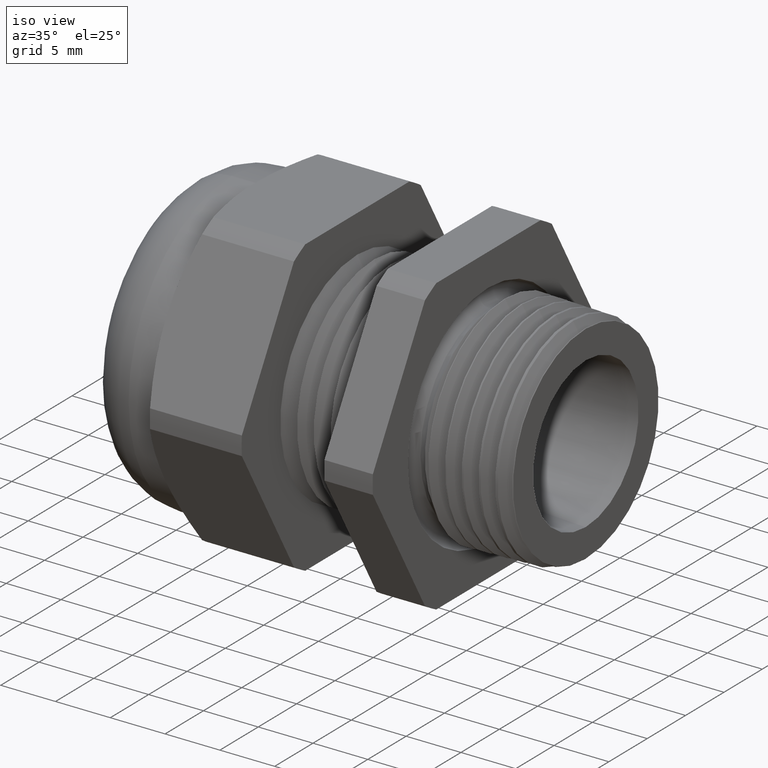
[diagram: clean part render]
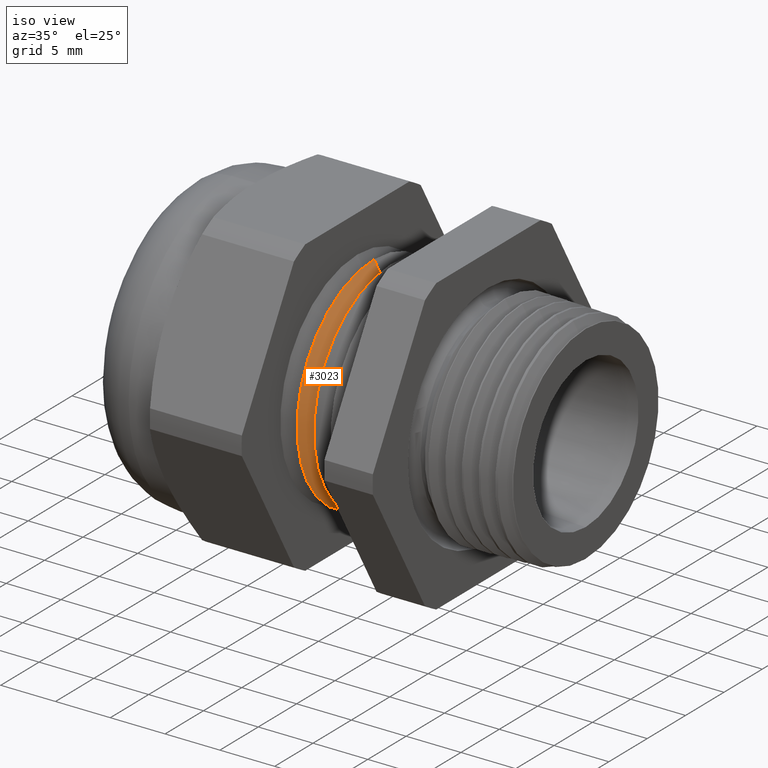
[diagram: same view with one face highlighted and labeled with its STEP entity id]
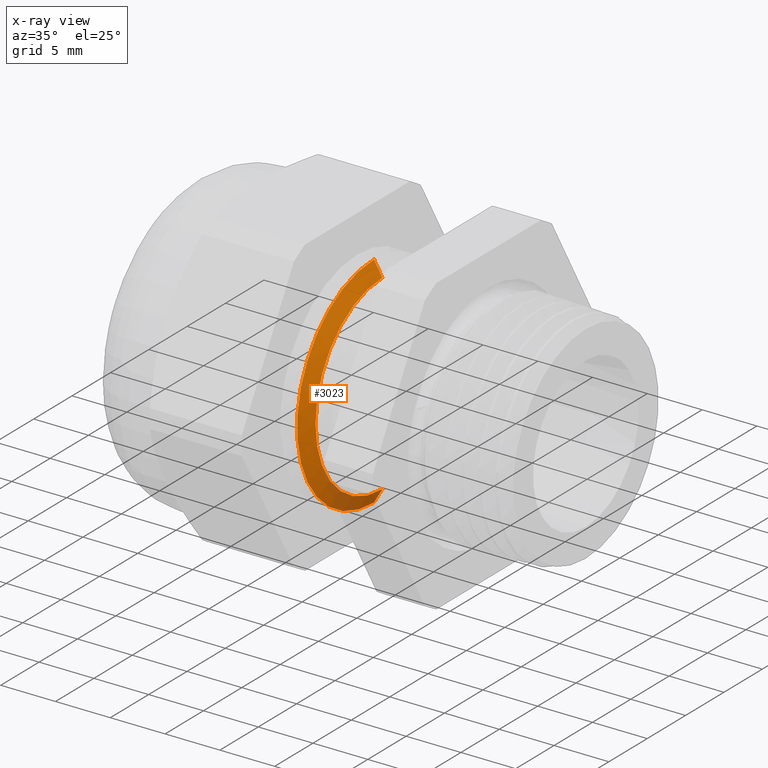
[diagram: x-ray of the same camera — body ghosted, the highlighted face saturated]
A machine part, iso view. The second image highlights one B-rep face of the part: STEP entity #3023.
The next image is the same camera in x-ray: the body ghosted, the highlighted face saturated — about 14% of this face is hidden behind the body in this view.
In plain terms, the highlighted conical surface has half-angle 60 deg.
Its self-contained STEP definition (entity closure, byte-faithful):
#1065 = CARTESIAN_POINT ( 'NONE',  ( -0.3808333473208367300, 4.519182433362568700E-017, 0.3430385000000000200 ) ) ;
#1119 = CARTESIAN_POINT ( 'NONE',  ( -0.3808333473208367300, 0.0000000000000000000, -0.3430385000000000200 ) ) ;
#1359 = DIRECTION ( 'NONE',  ( -0.4999999999999952800, 1.060575238724910200E-016, -0.8660254037844412600 ) ) ;
#1360 = VECTOR ( 'NONE', #1359, 39.37007874015748100 ) ;
#1361 = CARTESIAN_POINT ( 'NONE',  ( -0.4108333333333331100, 4.837354856632045600E-017, -0.3950000000000000200 ) ) ;
#1366 = LINE ( 'NONE', #1361, #1360 ) ;
#1410 = DIRECTION ( 'NONE',  ( -0.4999999999999952800, 0.0000000000000000000, 0.8660254037844412600 ) ) ;
#1411 = VECTOR ( 'NONE', #1410, 39.37007874015748100 ) ;
#1412 = CARTESIAN_POINT ( 'NONE',  ( -0.4108333333333331100, 0.0000000000000000000, 0.3950000000000000200 ) ) ;
#1413 = LINE ( 'NONE', #1412, #1411 ) ;
#1414 = CARTESIAN_POINT ( 'NONE',  ( -0.4108333333333331100, 4.837354856632045600E-017, 0.3950000000000000200 ) ) ;
#1424 = CARTESIAN_POINT ( 'NONE',  ( -0.4108333333333331100, 0.0000000000000000000, -0.3950000000000000200 ) ) ;
#1795 = AXIS2_PLACEMENT_3D ( 'NONE', #1800, #1855, #1854 ) ;
#1796 = CIRCLE ( 'NONE', #1795, 0.3430385000000000200 ) ;
#1800 = CARTESIAN_POINT ( 'NONE',  ( -0.3808333473208367300, 0.0000000000000000000, 0.0000000000000000000 ) ) ;
#1843 = DIRECTION ( 'NONE',  ( 0.0000000000000000000, 0.0000000000000000000, 1.000000000000000000 ) ) ;
#1844 = DIRECTION ( 'NONE',  ( -1.000000000000000000, 0.0000000000000000000, 0.0000000000000000000 ) ) ;
#1845 = CARTESIAN_POINT ( 'NONE',  ( -0.4108333333333331100, 0.0000000000000000000, 0.0000000000000000000 ) ) ;
#1846 = AXIS2_PLACEMENT_3D ( 'NONE', #1845, #1844, #1843 ) ;
#1847 = CONICAL_SURFACE ( 'NONE', #1846, 0.3950000000000000200, 1.047197551196603200 ) ;
#1848 = FACE_OUTER_BOUND ( 'NONE', #2964, .T. ) ;
#1854 = DIRECTION ( 'NONE',  ( 0.0000000000000000000, 0.0000000000000000000, -1.000000000000000000 ) ) ;
#1855 = DIRECTION ( 'NONE',  ( 1.000000000000000000, 0.0000000000000000000, 0.0000000000000000000 ) ) ;
#2011 = DIRECTION ( 'NONE',  ( 0.0000000000000000000, 0.0000000000000000000, -1.000000000000000000 ) ) ;
#2012 = DIRECTION ( 'NONE',  ( 1.000000000000000000, 0.0000000000000000000, 0.0000000000000000000 ) ) ;
#2013 = CARTESIAN_POINT ( 'NONE',  ( -0.4108333333333331100, 0.0000000000000000000, 0.0000000000000000000 ) ) ;
#2014 = AXIS2_PLACEMENT_3D ( 'NONE', #2013, #2012, #2011 ) ;
#2015 = CIRCLE ( 'NONE', #2014, 0.3950000000000000200 ) ;
#2596 = VERTEX_POINT ( 'NONE', #1065 ) ;
#2602 = VERTEX_POINT ( 'NONE', #1119 ) ;
#2757 = EDGE_CURVE ( 'NONE', #2602, #2789, #1366, .T. ) ;
#2789 = VERTEX_POINT ( 'NONE', #1424 ) ;
#2792 = VERTEX_POINT ( 'NONE', #1414 ) ;
#2793 = EDGE_CURVE ( 'NONE', #2596, #2792, #1413, .T. ) ;
#2964 = EDGE_LOOP ( 'NONE', ( #3020, #3016, #3019, #3018 ) ) ;
#3016 = ORIENTED_EDGE ( 'NONE', *, *, #3021, .F. ) ;
#3018 = ORIENTED_EDGE ( 'NONE', *, *, #3101, .T. ) ;
#3019 = ORIENTED_EDGE ( 'NONE', *, *, #2793, .T. ) ;
#3020 = ORIENTED_EDGE ( 'NONE', *, *, #2757, .F. ) ;
#3021 = EDGE_CURVE ( 'NONE', #2596, #2602, #1796, .T. ) ;
#3023 = ADVANCED_FACE ( 'NONE', ( #1848 ), #1847, .T. ) ;
#3101 = EDGE_CURVE ( 'NONE', #2792, #2789, #2015, .T. ) ;